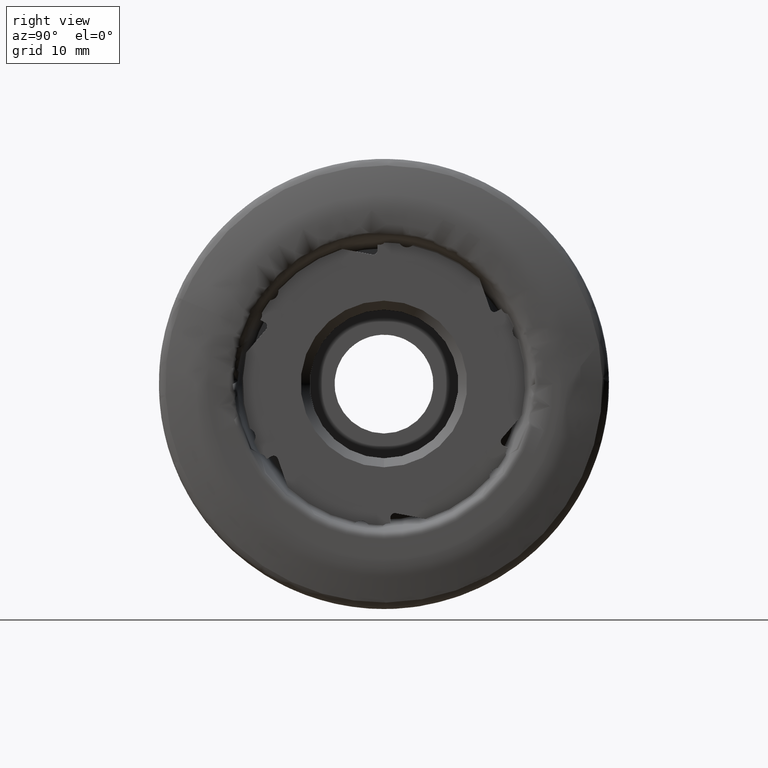
[diagram: clean part render]
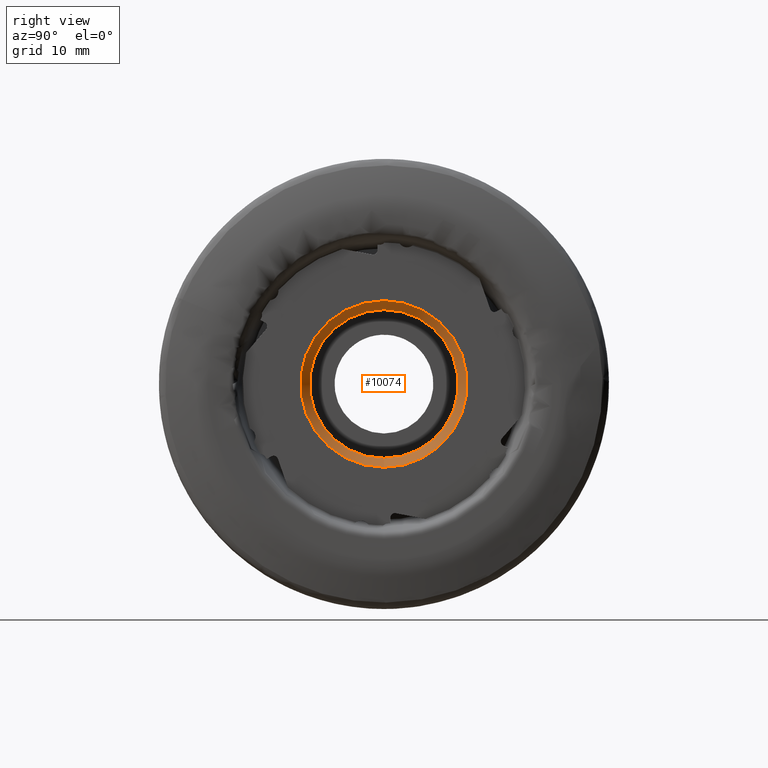
[diagram: same view with one face highlighted and labeled with its STEP entity id]
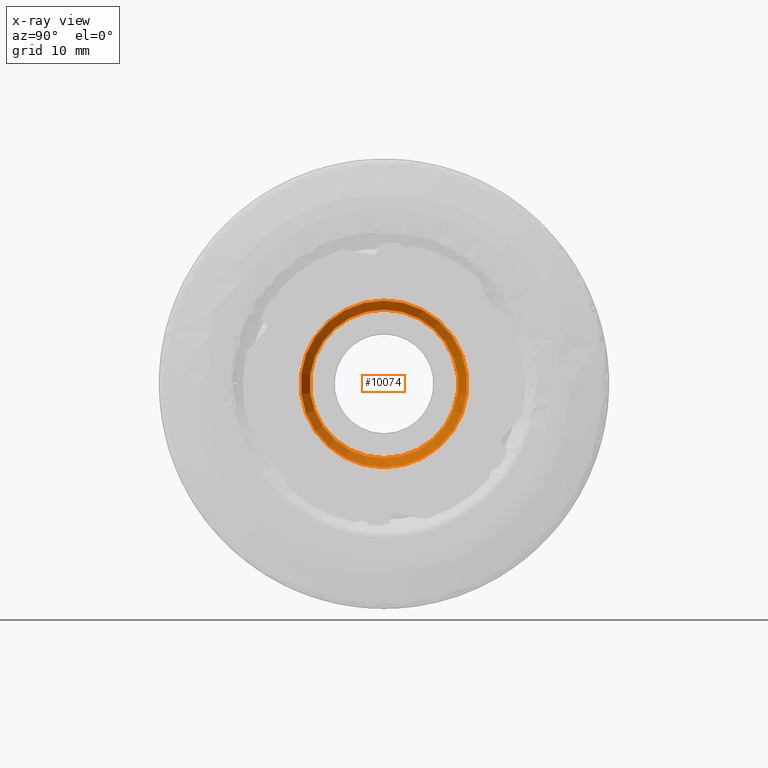
[diagram: x-ray of the same camera — body ghosted, the highlighted face saturated]
A machine part, right view. The second image highlights one B-rep face of the part: STEP entity #10074.
The next image is the same camera in x-ray: the body ghosted, the highlighted face saturated — about 0% of this face is hidden behind the body in this view.
In plain terms, the highlighted conical surface has half-angle 45 deg.
Its self-contained STEP definition (entity closure, byte-faithful):
#1013 = ORIENTED_EDGE ( 'NONE', *, *, #4303, .T. ) ;
#1845 = CARTESIAN_POINT ( 'NONE',  ( -2.249999999999998700, 0.0000000000000000000, -8.250000000000000000 ) ) ;
#2381 = EDGE_LOOP ( 'NONE', ( #10305 ) ) ;
#3319 = CIRCLE ( 'NONE', #4258, 8.250000000000000000 ) ;
#3484 = DIRECTION ( 'NONE',  ( 1.000000000000000000, -0.0000000000000000000, -0.0000000000000000000 ) ) ;
#3512 = DIRECTION ( 'NONE',  ( 1.000000000000000000, -0.0000000000000000000, -0.0000000000000000000 ) ) ;
#3610 = AXIS2_PLACEMENT_3D ( 'NONE', #10861, #5450, #11746 ) ;
#3694 = EDGE_LOOP ( 'NONE', ( #1013 ) ) ;
#3850 = VERTEX_POINT ( 'NONE', #11739 ) ;
#4258 = AXIS2_PLACEMENT_3D ( 'NONE', #8894, #3512, #9804 ) ;
#4303 = EDGE_CURVE ( 'NONE', #3850, #3850, #11073, .T. ) ;
#5417 = FACE_OUTER_BOUND ( 'NONE', #3694, .T. ) ;
#5450 = DIRECTION ( 'NONE',  ( 1.000000000000000000, -0.0000000000000000000, -0.0000000000000000000 ) ) ;
#5615 = EDGE_CURVE ( 'NONE', #5944, #5944, #3319, .T. ) ;
#5944 = VERTEX_POINT ( 'NONE', #1845 ) ;
#6958 = CONICAL_SURFACE ( 'NONE', #8540, 9.250000000000003600, 0.7853981633974503900 ) ;
#8540 = AXIS2_PLACEMENT_3D ( 'NONE', #9847, #3484, #8786 ) ;
#8786 = DIRECTION ( 'NONE',  ( 0.0000000000000000000, 0.0000000000000000000, -1.000000000000000000 ) ) ;
#8894 = CARTESIAN_POINT ( 'NONE',  ( -2.249999999999998700, 0.0000000000000000000, 0.0000000000000000000 ) ) ;
#9641 = FACE_BOUND ( 'NONE', #2381, .T. ) ;
#9804 = DIRECTION ( 'NONE',  ( 0.0000000000000000000, 0.0000000000000000000, -1.000000000000000000 ) ) ;
#9847 = CARTESIAN_POINT ( 'NONE',  ( -1.250000000000000000, 0.0000000000000000000, 0.0000000000000000000 ) ) ;
#10074 = ADVANCED_FACE ( 'NONE', ( #9641, #5417 ), #6958, .F. ) ;
#10305 = ORIENTED_EDGE ( 'NONE', *, *, #5615, .F. ) ;
#10861 = CARTESIAN_POINT ( 'NONE',  ( -1.250000000000000000, 0.0000000000000000000, 0.0000000000000000000 ) ) ;
#11073 = CIRCLE ( 'NONE', #3610, 9.250000000000003600 ) ;
#11739 = CARTESIAN_POINT ( 'NONE',  ( -1.250000000000000000, 0.0000000000000000000, -9.250000000000003600 ) ) ;
#11746 = DIRECTION ( 'NONE',  ( 0.0000000000000000000, 0.0000000000000000000, -1.000000000000000000 ) ) ;